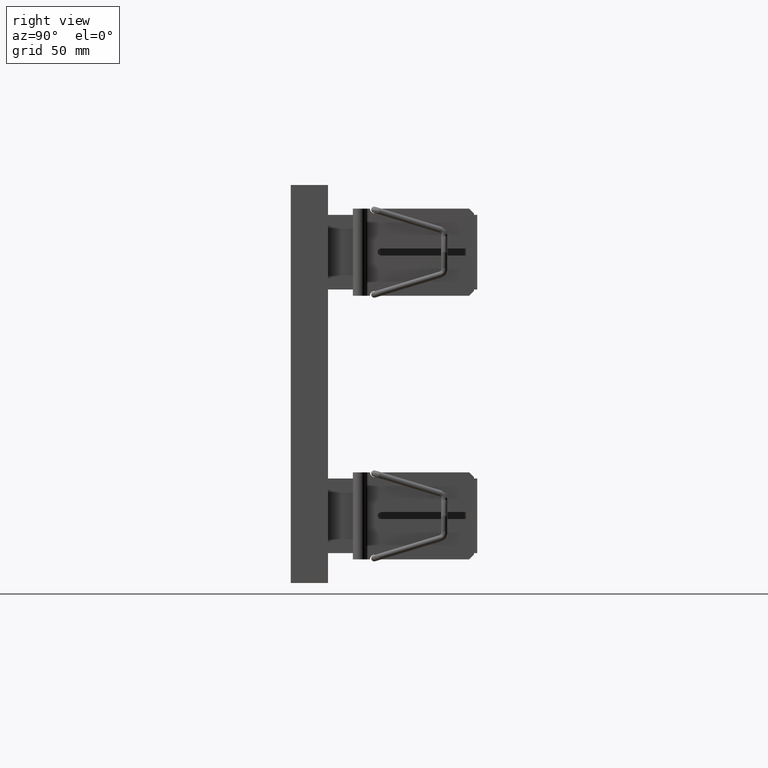
[diagram: clean part render]
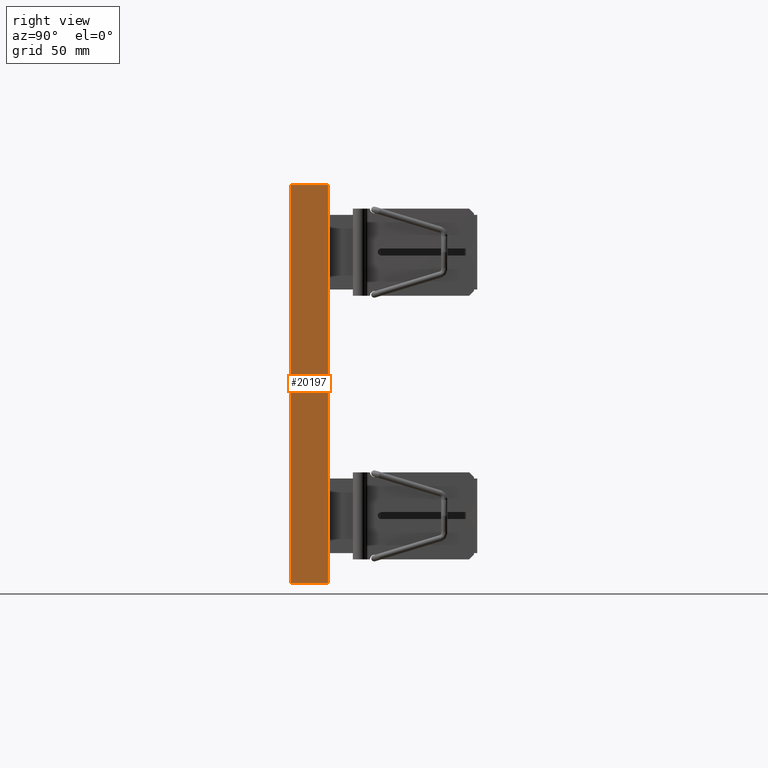
[diagram: same view with one face highlighted and labeled with its STEP entity id]
A machine part, right view. The second image highlights one B-rep face of the part: STEP entity #20197.
In plain terms, the highlighted planar face has unit normal (-1, 0, 0).
Its self-contained STEP definition (entity closure, byte-faithful):
#369 = EDGE_CURVE ( 'NONE', #56751, #66710, #17622, .T. ) ;
#453 = ORIENTED_EDGE ( 'NONE', *, *, #11689, .F. ) ;
#2529 = VECTOR ( 'NONE', #80725, 39.37007874015748100 ) ;
#3187 = ORIENTED_EDGE ( 'NONE', *, *, #69593, .T. ) ;
#4112 = CARTESIAN_POINT ( 'NONE',  ( 5.874999999999999100, 0.7500000000000001100, 3.999999999999997800 ) ) ;
#5773 = CARTESIAN_POINT ( 'NONE',  ( 5.874999999999999100, 0.7500000000000001100, 3.999999999999997800 ) ) ;
#6706 = DIRECTION ( 'NONE',  ( 0.0000000000000000000, 0.0000000000000000000, -1.000000000000000000 ) ) ;
#11689 = EDGE_CURVE ( 'NONE', #66710, #49641, #28413, .T. ) ;
#12482 = ORIENTED_EDGE ( 'NONE', *, *, #369, .F. ) ;
#12606 = CARTESIAN_POINT ( 'NONE',  ( 5.874999999999999100, 0.7500000000000001100, 3.999999999999997800 ) ) ;
#13021 = CARTESIAN_POINT ( 'NONE',  ( 5.874999999999999100, 0.0000000000000000000, 3.999999999999997800 ) ) ;
#17622 = LINE ( 'NONE', #4112, #2529 ) ;
#20197 = ADVANCED_FACE ( 'NONE', ( #22483 ), #35496, .F. ) ;
#22483 = FACE_OUTER_BOUND ( 'NONE', #72899, .T. ) ;
#22884 = CARTESIAN_POINT ( 'NONE',  ( 5.874999999999999100, 0.7500000000000001100, 3.999999999999997800 ) ) ;
#22905 = ORIENTED_EDGE ( 'NONE', *, *, #75629, .T. ) ;
#28413 = LINE ( 'NONE', #73426, #43481 ) ;
#29258 = DIRECTION ( 'NONE',  ( 0.0000000000000000000, 0.0000000000000000000, 1.000000000000000000 ) ) ;
#30561 = VERTEX_POINT ( 'NONE', #13021 ) ;
#32625 = DIRECTION ( 'NONE',  ( -0.0000000000000000000, -1.000000000000000000, -0.0000000000000000000 ) ) ;
#34766 = CARTESIAN_POINT ( 'NONE',  ( 5.874999999999999100, 0.7500000000000001100, -4.000000000000001800 ) ) ;
#35496 = PLANE ( 'NONE',  #65662 ) ;
#38702 = CARTESIAN_POINT ( 'NONE',  ( 5.874999999999999100, 0.0000000000000000000, 3.999999999999997800 ) ) ;
#40099 = VECTOR ( 'NONE', #6706, 39.37007874015748100 ) ;
#42151 = LINE ( 'NONE', #38702, #40099 ) ;
#43481 = VECTOR ( 'NONE', #32625, 39.37007874015748100 ) ;
#49641 = VERTEX_POINT ( 'NONE', #62714 ) ;
#50577 = DIRECTION ( 'NONE',  ( -0.0000000000000000000, -1.000000000000000000, -0.0000000000000000000 ) ) ;
#56751 = VERTEX_POINT ( 'NONE', #12606 ) ;
#62385 = LINE ( 'NONE', #5773, #77384 ) ;
#62714 = CARTESIAN_POINT ( 'NONE',  ( 5.874999999999999100, 0.0000000000000000000, -4.000000000000001800 ) ) ;
#65662 = AXIS2_PLACEMENT_3D ( 'NONE', #22884, #67642, #29258 ) ;
#66710 = VERTEX_POINT ( 'NONE', #34766 ) ;
#67642 = DIRECTION ( 'NONE',  ( -1.000000000000000000, 0.0000000000000000000, 0.0000000000000000000 ) ) ;
#69593 = EDGE_CURVE ( 'NONE', #30561, #49641, #42151, .T. ) ;
#72899 = EDGE_LOOP ( 'NONE', ( #3187, #453, #12482, #22905 ) ) ;
#73426 = CARTESIAN_POINT ( 'NONE',  ( 5.874999999999999100, 0.7500000000000001100, -4.000000000000001800 ) ) ;
#75629 = EDGE_CURVE ( 'NONE', #56751, #30561, #62385, .T. ) ;
#77384 = VECTOR ( 'NONE', #50577, 39.37007874015748100 ) ;
#80725 = DIRECTION ( 'NONE',  ( 0.0000000000000000000, 0.0000000000000000000, -1.000000000000000000 ) ) ;